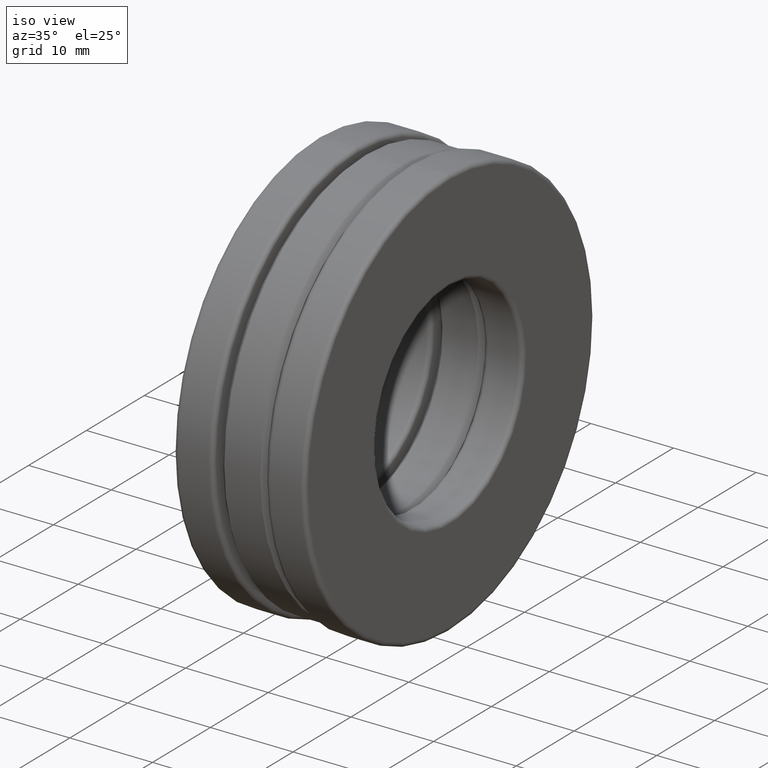
[diagram: clean part render]
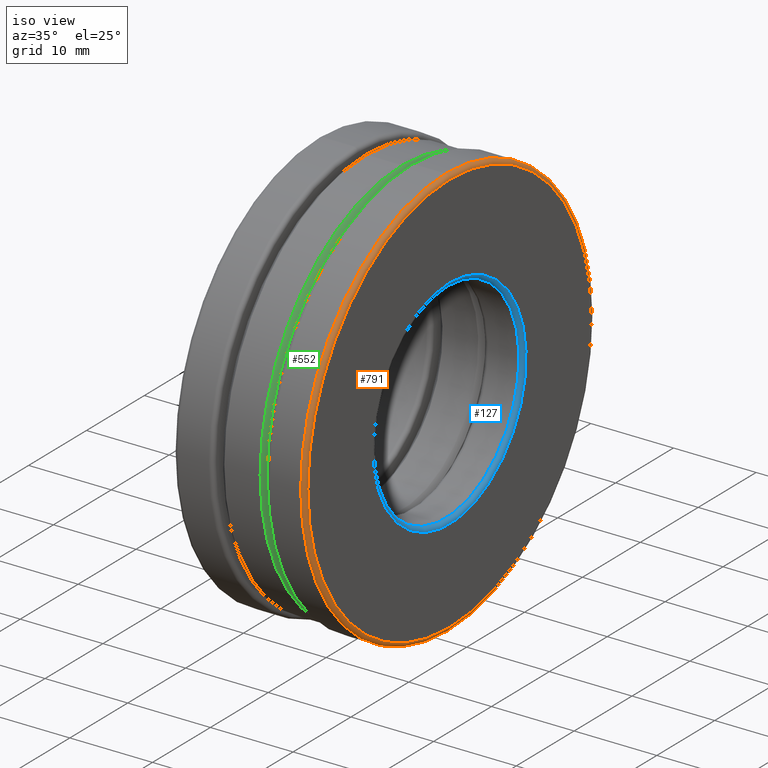
[diagram: same view with three faces highlighted in distinct colors, each labeled with its STEP entity id]
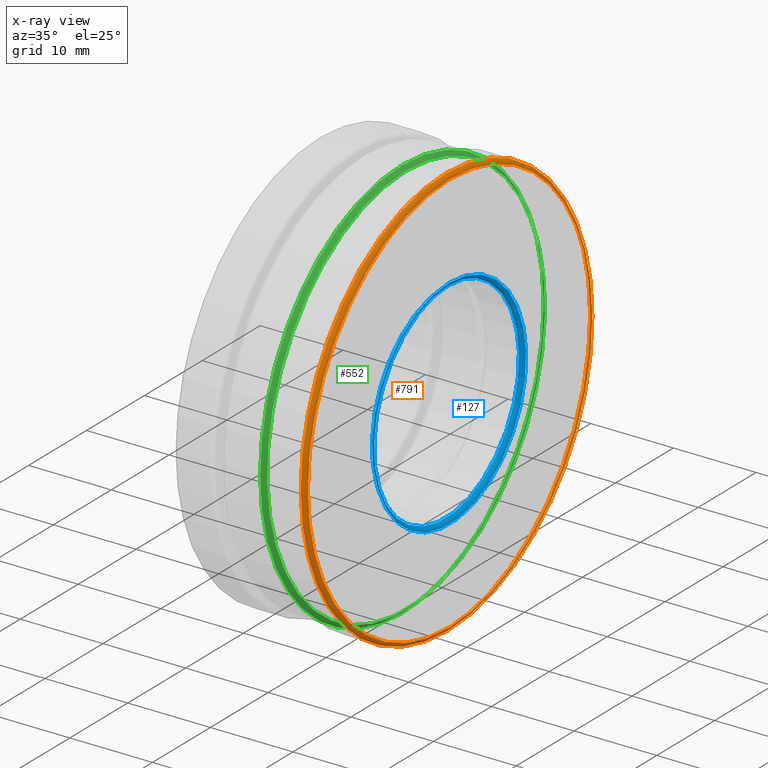
[diagram: x-ray of the same camera — body ghosted, the three highlighted faces saturated]
A machine part, iso view with three faces highlighted in distinct colors.
The next image is the same camera in x-ray (body ghosted, the three faces saturated) — at least one of them is partly hidden behind the body in this view.
Their STEP definitions:

[orange] entity #791 — the highlighted toroidal blend (fillet) surface has major radius 24.4951 mm and minor (blend) radius 0.508 mm.
#1 = EDGE_CURVE ( 'NONE', #1189, #1189, #290, .T. ) ;
#103 = CIRCLE ( 'NONE', #381, 0.9643749999999999800 ) ;
#106 = TOROIDAL_SURFACE ( 'NONE', #1183, 0.9643749999999999800, 0.02000000000000000700 ) ;
#161 = CARTESIAN_POINT ( 'NONE',  ( 0.2925000000000000400, 0.0000000000000000000, 0.0000000000000000000 ) ) ;
#261 = ORIENTED_EDGE ( 'NONE', *, *, #1, .F. ) ;
#290 = CIRCLE ( 'NONE', #1393, 0.9843750000000001100 ) ;
#381 = AXIS2_PLACEMENT_3D ( 'NONE', #789, #1347, #677 ) ;
#573 = ORIENTED_EDGE ( 'NONE', *, *, #1136, .T. ) ;
#632 = DIRECTION ( 'NONE',  ( -1.000000000000000000, -0.0000000000000000000, -0.0000000000000000000 ) ) ;
#677 = DIRECTION ( 'NONE',  ( 0.0000000000000000000, 0.0000000000000000000, 1.000000000000000000 ) ) ;
#688 = DIRECTION ( 'NONE',  ( 0.0000000000000000000, 0.0000000000000000000, 1.000000000000000000 ) ) ;
#789 = CARTESIAN_POINT ( 'NONE',  ( 0.3125000000000000000, 0.0000000000000000000, 0.0000000000000000000 ) ) ;
#791 = ADVANCED_FACE ( 'NONE', ( #1018, #984 ), #106, .T. ) ;
#925 = CARTESIAN_POINT ( 'NONE',  ( 0.2925000000000000400, 0.0000000000000000000, 0.0000000000000000000 ) ) ;
#960 = EDGE_LOOP ( 'NONE', ( #573 ) ) ;
#984 = FACE_OUTER_BOUND ( 'NONE', #960, .T. ) ;
#1018 = FACE_OUTER_BOUND ( 'NONE', #1408, .T. ) ;
#1022 = DIRECTION ( 'NONE',  ( -1.000000000000000000, -0.0000000000000000000, -0.0000000000000000000 ) ) ;
#1112 = CARTESIAN_POINT ( 'NONE',  ( 0.3125000000000000000, 0.0000000000000000000, 0.9643749999999999800 ) ) ;
#1136 = EDGE_CURVE ( 'NONE', #1380, #1380, #103, .T. ) ;
#1183 = AXIS2_PLACEMENT_3D ( 'NONE', #161, #632, #1409 ) ;
#1189 = VERTEX_POINT ( 'NONE', #1298 ) ;
#1298 = CARTESIAN_POINT ( 'NONE',  ( 0.2925000000000000400, 0.0000000000000000000, 0.9843750000000001100 ) ) ;
#1347 = DIRECTION ( 'NONE',  ( -1.000000000000000000, -0.0000000000000000000, -0.0000000000000000000 ) ) ;
#1380 = VERTEX_POINT ( 'NONE', #1112 ) ;
#1393 = AXIS2_PLACEMENT_3D ( 'NONE', #925, #1022, #688 ) ;
#1408 = EDGE_LOOP ( 'NONE', ( #261 ) ) ;
#1409 = DIRECTION ( 'NONE',  ( 0.0000000000000000000, 0.0000000000000000000, 1.000000000000000000 ) ) ;

[blue] entity #127 — the highlighted toroidal blend (fillet) surface has major radius 13.208 mm and minor (blend) radius 0.508 mm.
#46 = EDGE_CURVE ( 'NONE', #1109, #1109, #132, .T. ) ;
#89 = CARTESIAN_POINT ( 'NONE',  ( 0.2925000000000000400, 0.0000000000000000000, 0.0000000000000000000 ) ) ;
#127 = ADVANCED_FACE ( 'NONE', ( #1007, #845 ), #631, .T. ) ;
#132 = CIRCLE ( 'NONE', #1355, 0.5199999999999999100 ) ;
#325 = CARTESIAN_POINT ( 'NONE',  ( 0.2925000000000000400, 0.0000000000000000000, 0.5000000000000000000 ) ) ;
#374 = DIRECTION ( 'NONE',  ( -1.000000000000000000, -0.0000000000000000000, -0.0000000000000000000 ) ) ;
#551 = DIRECTION ( 'NONE',  ( 0.0000000000000000000, 0.0000000000000000000, 1.000000000000000000 ) ) ;
#570 = DIRECTION ( 'NONE',  ( -1.000000000000000000, -0.0000000000000000000, -0.0000000000000000000 ) ) ;
#594 = EDGE_LOOP ( 'NONE', ( #625 ) ) ;
#610 = DIRECTION ( 'NONE',  ( 0.0000000000000000000, 0.0000000000000000000, 1.000000000000000000 ) ) ;
#625 = ORIENTED_EDGE ( 'NONE', *, *, #46, .F. ) ;
#629 = VERTEX_POINT ( 'NONE', #325 ) ;
#631 = TOROIDAL_SURFACE ( 'NONE', #825, 0.5199999999999999100, 0.01999999999999995900 ) ;
#656 = EDGE_CURVE ( 'NONE', #629, #629, #1344, .T. ) ;
#825 = AXIS2_PLACEMENT_3D ( 'NONE', #89, #1116, #551 ) ;
#845 = FACE_OUTER_BOUND ( 'NONE', #1418, .T. ) ;
#851 = CARTESIAN_POINT ( 'NONE',  ( 0.3125000000000000000, 0.0000000000000000000, 0.5199999999999999100 ) ) ;
#928 = CARTESIAN_POINT ( 'NONE',  ( 0.3125000000000000000, 0.0000000000000000000, 0.0000000000000000000 ) ) ;
#1007 = FACE_OUTER_BOUND ( 'NONE', #594, .T. ) ;
#1028 = AXIS2_PLACEMENT_3D ( 'NONE', #1162, #374, #610 ) ;
#1040 = DIRECTION ( 'NONE',  ( 0.0000000000000000000, 0.0000000000000000000, 1.000000000000000000 ) ) ;
#1109 = VERTEX_POINT ( 'NONE', #851 ) ;
#1116 = DIRECTION ( 'NONE',  ( -1.000000000000000000, -0.0000000000000000000, -0.0000000000000000000 ) ) ;
#1162 = CARTESIAN_POINT ( 'NONE',  ( 0.2925000000000000400, 0.0000000000000000000, 0.0000000000000000000 ) ) ;
#1294 = ORIENTED_EDGE ( 'NONE', *, *, #656, .T. ) ;
#1344 = CIRCLE ( 'NONE', #1028, 0.5000000000000000000 ) ;
#1355 = AXIS2_PLACEMENT_3D ( 'NONE', #928, #570, #1040 ) ;
#1418 = EDGE_LOOP ( 'NONE', ( #1294 ) ) ;

[green] entity #552 — the highlighted conical surface has half-angle 45 deg.
#19 = EDGE_LOOP ( 'NONE', ( #1444 ) ) ;
#111 = DIRECTION ( 'NONE',  ( 0.0000000000000000000, 0.0000000000000000000, 1.000000000000000000 ) ) ;
#185 = CARTESIAN_POINT ( 'NONE',  ( 0.08499999999999997800, 0.0000000000000000000, 0.9643749999999997600 ) ) ;
#212 = DIRECTION ( 'NONE',  ( -1.000000000000000000, -0.0000000000000000000, -0.0000000000000000000 ) ) ;
#220 = VERTEX_POINT ( 'NONE', #773 ) ;
#238 = DIRECTION ( 'NONE',  ( -1.000000000000000000, -0.0000000000000000000, -0.0000000000000000000 ) ) ;
#326 = DIRECTION ( 'NONE',  ( 0.0000000000000000000, 0.0000000000000000000, 1.000000000000000000 ) ) ;
#421 = AXIS2_PLACEMENT_3D ( 'NONE', #827, #1169, #940 ) ;
#499 = FACE_BOUND ( 'NONE', #1266, .T. ) ;
#552 = ADVANCED_FACE ( 'NONE', ( #499, #1288 ), #1005, .T. ) ;
#608 = AXIS2_PLACEMENT_3D ( 'NONE', #887, #212, #326 ) ;
#624 = EDGE_CURVE ( 'NONE', #220, #220, #769, .T. ) ;
#738 = VERTEX_POINT ( 'NONE', #185 ) ;
#769 = CIRCLE ( 'NONE', #421, 0.9443749999999996300 ) ;
#773 = CARTESIAN_POINT ( 'NONE',  ( 0.1050000000000000100, 0.0000000000000000000, 0.9443749999999996300 ) ) ;
#827 = CARTESIAN_POINT ( 'NONE',  ( 0.1050000000000000100, 0.0000000000000000000, 0.0000000000000000000 ) ) ;
#839 = CIRCLE ( 'NONE', #608, 0.9643749999999997600 ) ;
#887 = CARTESIAN_POINT ( 'NONE',  ( 0.08499999999999997800, 0.0000000000000000000, 0.0000000000000000000 ) ) ;
#940 = DIRECTION ( 'NONE',  ( 0.0000000000000000000, 0.0000000000000000000, 1.000000000000000000 ) ) ;
#1005 = CONICAL_SURFACE ( 'NONE', #1276, 0.9643749999999997600, 0.7853981633974491700 ) ;
#1050 = EDGE_CURVE ( 'NONE', #738, #738, #839, .T. ) ;
#1169 = DIRECTION ( 'NONE',  ( -1.000000000000000000, -0.0000000000000000000, -0.0000000000000000000 ) ) ;
#1197 = ORIENTED_EDGE ( 'NONE', *, *, #624, .T. ) ;
#1238 = CARTESIAN_POINT ( 'NONE',  ( 0.08499999999999997800, 0.0000000000000000000, 0.0000000000000000000 ) ) ;
#1266 = EDGE_LOOP ( 'NONE', ( #1197 ) ) ;
#1276 = AXIS2_PLACEMENT_3D ( 'NONE', #1238, #238, #111 ) ;
#1288 = FACE_OUTER_BOUND ( 'NONE', #19, .T. ) ;
#1444 = ORIENTED_EDGE ( 'NONE', *, *, #1050, .F. ) ;